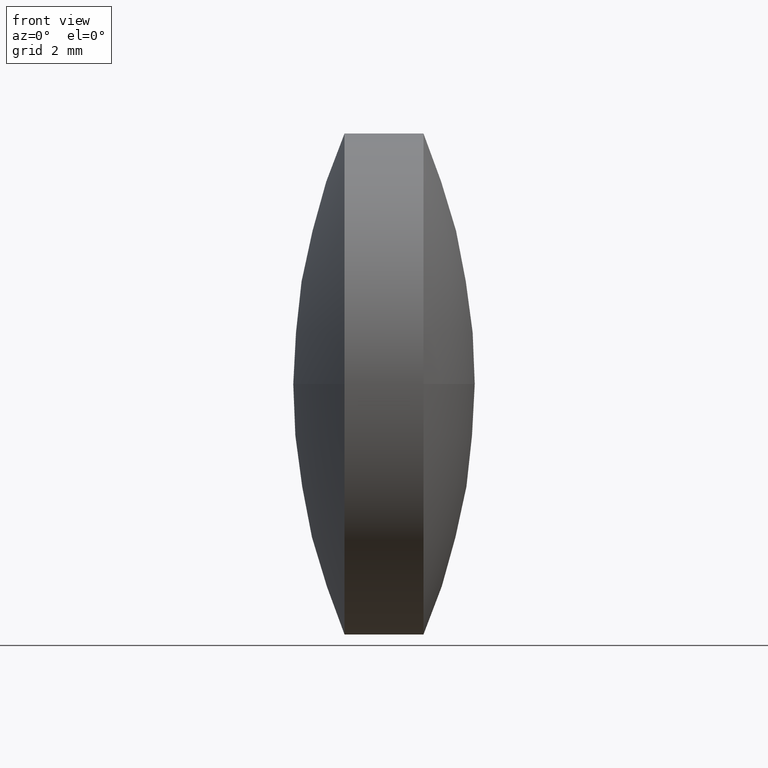
[diagram: clean part render]
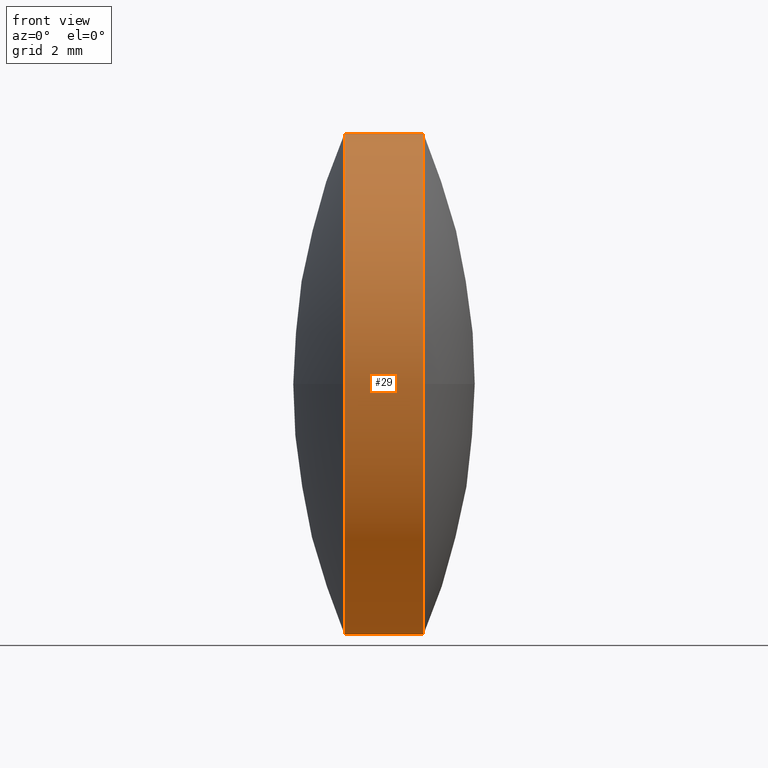
[diagram: same view with one face highlighted and labeled with its STEP entity id]
A machine part, front view. The second image highlights one B-rep face of the part: STEP entity #29.
In plain terms, the highlighted cylindrical surface (partial cylindrical patch) has radius 6.35 mm, axis along (-1, -0, -0).
Its self-contained STEP definition (entity closure, byte-faithful):
#12 = ORIENTED_EDGE ( 'NONE', *, *, #202, .T. ) ;
#14 = VECTOR ( 'NONE', #30, 1000.000000000000000 ) ;
#20 = CARTESIAN_POINT ( 'NONE',  ( 44.22913117304555200, 24.30805651159239000, 0.0000000000000000000 ) ) ;
#22 = DIRECTION ( 'NONE',  ( -1.000000000000000000, -0.0000000000000000000, -0.0000000000000000000 ) ) ;
#23 = EDGE_CURVE ( 'NONE', #148, #288, #187, .T. ) ;
#24 = FACE_OUTER_BOUND ( 'NONE', #50, .T. ) ;
#29 = ADVANCED_FACE ( 'NONE', ( #24 ), #198, .T. ) ;
#30 = DIRECTION ( 'NONE',  ( -1.000000000000000000, -0.0000000000000000000, -0.0000000000000000000 ) ) ;
#35 = CARTESIAN_POINT ( 'NONE',  ( 42.22906260161698100, 24.30805651159239000, 0.0000000000000000000 ) ) ;
#43 = AXIS2_PLACEMENT_3D ( 'NONE', #258, #88, #57 ) ;
#50 = EDGE_LOOP ( 'NONE', ( #199, #305, #12, #85, #142, #278 ) ) ;
#57 = DIRECTION ( 'NONE',  ( 0.0000000000000000000, 0.0000000000000000000, 1.000000000000000000 ) ) ;
#58 = AXIS2_PLACEMENT_3D ( 'NONE', #35, #111, #261 ) ;
#85 = ORIENTED_EDGE ( 'NONE', *, *, #156, .T. ) ;
#88 = DIRECTION ( 'NONE',  ( -1.000000000000000000, -0.0000000000000000000, -0.0000000000000000000 ) ) ;
#90 = CARTESIAN_POINT ( 'NONE',  ( 42.22906260161698100, 24.30805651159239000, -6.349999999999997900 ) ) ;
#91 = CARTESIAN_POINT ( 'NONE',  ( 44.22913117304555200, 24.30805651159239000, 0.0000000000000000000 ) ) ;
#92 = LINE ( 'NONE', #130, #122 ) ;
#111 = DIRECTION ( 'NONE',  ( -1.000000000000000000, -0.0000000000000000000, -0.0000000000000000000 ) ) ;
#113 = CARTESIAN_POINT ( 'NONE',  ( 42.22906260161698100, 17.95805651159239200, -7.776507174585689200E-016 ) ) ;
#119 = EDGE_CURVE ( 'NONE', #155, #237, #274, .T. ) ;
#122 = VECTOR ( 'NONE', #161, 1000.000000000000000 ) ;
#129 = EDGE_CURVE ( 'NONE', #312, #155, #192, .T. ) ;
#130 = CARTESIAN_POINT ( 'NONE',  ( 39.65270067541857900, 24.30805651159239000, 6.349999999999997900 ) ) ;
#134 = CIRCLE ( 'NONE', #262, 6.349999999999997900 ) ;
#142 = ORIENTED_EDGE ( 'NONE', *, *, #119, .F. ) ;
#148 = VERTEX_POINT ( 'NONE', #293 ) ;
#151 = EDGE_CURVE ( 'NONE', #148, #312, #225, .T. ) ;
#154 = DIRECTION ( 'NONE',  ( 0.0000000000000000000, 0.0000000000000000000, 1.000000000000000000 ) ) ;
#155 = VERTEX_POINT ( 'NONE', #113 ) ;
#156 = EDGE_CURVE ( 'NONE', #294, #237, #92, .T. ) ;
#161 = DIRECTION ( 'NONE',  ( -1.000000000000000000, -0.0000000000000000000, -0.0000000000000000000 ) ) ;
#180 = DIRECTION ( 'NONE',  ( -1.000000000000000000, -0.0000000000000000000, -0.0000000000000000000 ) ) ;
#187 = CIRCLE ( 'NONE', #289, 6.349999999999997900 ) ;
#192 = CIRCLE ( 'NONE', #58, 6.349999999999997900 ) ;
#198 = CYLINDRICAL_SURFACE ( 'NONE', #248, 6.349999999999997900 ) ;
#199 = ORIENTED_EDGE ( 'NONE', *, *, #151, .F. ) ;
#202 = EDGE_CURVE ( 'NONE', #288, #294, #134, .T. ) ;
#208 = CARTESIAN_POINT ( 'NONE',  ( 44.22913117304555200, 24.30805651159239000, 6.349999999999997900 ) ) ;
#225 = LINE ( 'NONE', #318, #14 ) ;
#231 = CARTESIAN_POINT ( 'NONE',  ( 39.65270067541857900, 24.30805651159239000, 0.0000000000000000000 ) ) ;
#237 = VERTEX_POINT ( 'NONE', #341 ) ;
#248 = AXIS2_PLACEMENT_3D ( 'NONE', #231, #180, #154 ) ;
#256 = DIRECTION ( 'NONE',  ( 0.0000000000000000000, 0.0000000000000000000, 1.000000000000000000 ) ) ;
#258 = CARTESIAN_POINT ( 'NONE',  ( 42.22906260161698100, 24.30805651159239000, 0.0000000000000000000 ) ) ;
#261 = DIRECTION ( 'NONE',  ( 0.0000000000000000000, 0.0000000000000000000, 1.000000000000000000 ) ) ;
#262 = AXIS2_PLACEMENT_3D ( 'NONE', #91, #287, #317 ) ;
#274 = CIRCLE ( 'NONE', #43, 6.349999999999997900 ) ;
#278 = ORIENTED_EDGE ( 'NONE', *, *, #129, .F. ) ;
#287 = DIRECTION ( 'NONE',  ( -1.000000000000000000, -0.0000000000000000000, -0.0000000000000000000 ) ) ;
#288 = VERTEX_POINT ( 'NONE', #291 ) ;
#289 = AXIS2_PLACEMENT_3D ( 'NONE', #20, #22, #256 ) ;
#291 = CARTESIAN_POINT ( 'NONE',  ( 44.22913117304555200, 17.95805651159239600, 0.0000000000000000000 ) ) ;
#293 = CARTESIAN_POINT ( 'NONE',  ( 44.22913117304555200, 24.30805651159239000, -6.349999999999997900 ) ) ;
#294 = VERTEX_POINT ( 'NONE', #208 ) ;
#305 = ORIENTED_EDGE ( 'NONE', *, *, #23, .T. ) ;
#312 = VERTEX_POINT ( 'NONE', #90 ) ;
#317 = DIRECTION ( 'NONE',  ( 0.0000000000000000000, 0.0000000000000000000, 1.000000000000000000 ) ) ;
#318 = CARTESIAN_POINT ( 'NONE',  ( 39.65270067541857900, 24.30805651159239000, -6.349999999999997900 ) ) ;
#341 = CARTESIAN_POINT ( 'NONE',  ( 42.22906260161698100, 24.30805651159239000, 6.349999999999997900 ) ) ;